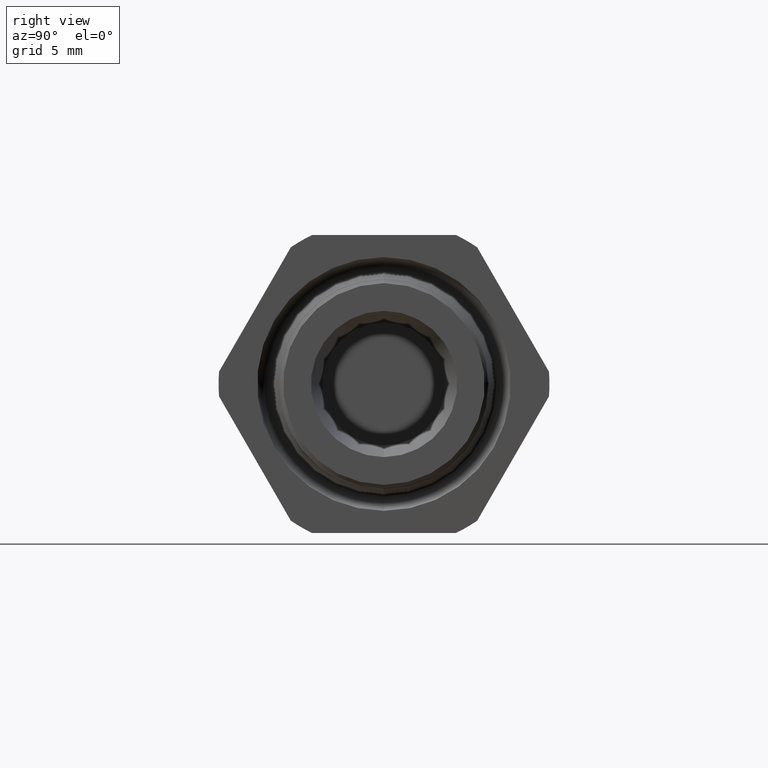
[diagram: clean part render]
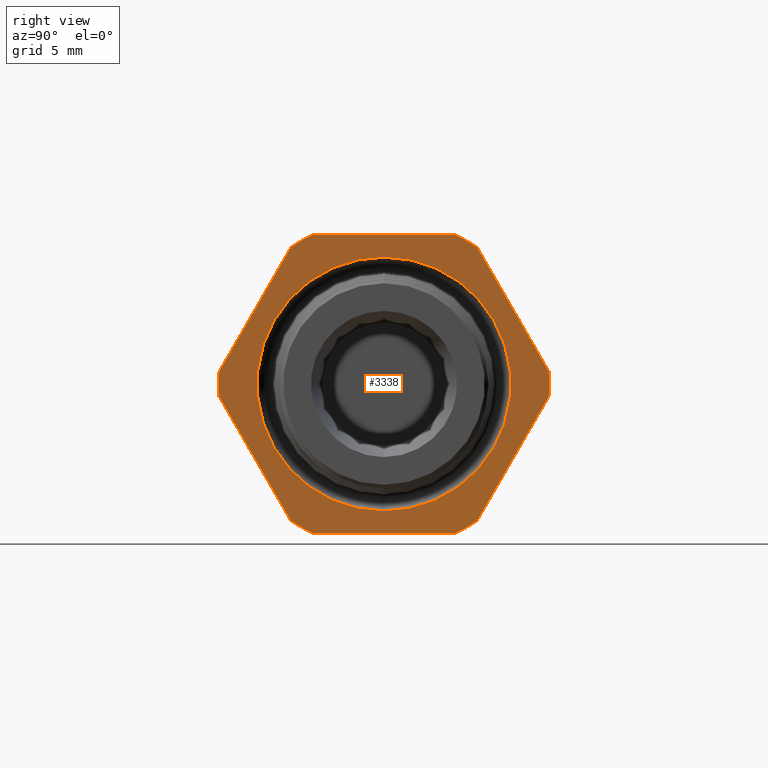
[diagram: same view with one face highlighted and labeled with its STEP entity id]
A machine part, right view. The second image highlights one B-rep face of the part: STEP entity #3338.
In plain terms, the highlighted planar face has unit normal (1, 0, 0).
Its self-contained STEP definition (entity closure, byte-faithful):
#89 = PLANE ( 'NONE',  #150 ) ;
#90 = FACE_OUTER_BOUND ( 'NONE', #3343, .T. ) ;
#91 = FACE_BOUND ( 'NONE', #3339, .T. ) ;
#131 = CARTESIAN_POINT ( 'NONE',  ( -0.3100000000000000000, 0.4150909474475088000, 0.03104138925901233200 ) ) ;
#132 = DIRECTION ( 'NONE',  ( 0.0000000000000000000, 0.0000000000000000000, -1.000000000000000000 ) ) ;
#133 = DIRECTION ( 'NONE',  ( 1.000000000000000000, 0.0000000000000000000, 0.0000000000000000000 ) ) ;
#134 = CARTESIAN_POINT ( 'NONE',  ( -0.3100000000000000000, 0.0000000000000000000, 0.0000000000000000000 ) ) ;
#135 = AXIS2_PLACEMENT_3D ( 'NONE', #134, #133, #132 ) ;
#136 = CIRCLE ( 'NONE', #135, 0.4162500000000000100 ) ;
#137 = CARTESIAN_POINT ( 'NONE',  ( -0.3100000000000000000, 0.4150909474475088000, -0.03104138925901222000 ) ) ;
#138 = CARTESIAN_POINT ( 'NONE',  ( -0.3100000000000000000, 0.2344281053908202900, -0.3439586107409879900 ) ) ;
#139 = DIRECTION ( 'NONE',  ( 0.0000000000000000000, 0.5000000000000000000, 0.8660254037844386000 ) ) ;
#140 = VECTOR ( 'NONE', #139, 39.37007874015748900 ) ;
#141 = CARTESIAN_POINT ( 'NONE',  ( -0.3100000000000000000, 0.5122595264191646100, 0.1372595264191644700 ) ) ;
#142 = LINE ( 'NONE', #141, #140 ) ;
#143 = DIRECTION ( 'NONE',  ( 0.0000000000000000000, 0.0000000000000000000, -1.000000000000000000 ) ) ;
#144 = DIRECTION ( 'NONE',  ( 1.000000000000000000, 0.0000000000000000000, 0.0000000000000000000 ) ) ;
#145 = AXIS2_PLACEMENT_3D ( 'NONE', #151, #144, #143 ) ;
#146 = CIRCLE ( 'NONE', #145, 0.3192456312392313900 ) ;
#147 = DIRECTION ( 'NONE',  ( 0.0000000000000000000, 0.0000000000000000000, -1.000000000000000000 ) ) ;
#148 = DIRECTION ( 'NONE',  ( 1.000000000000000000, 0.0000000000000000000, 0.0000000000000000000 ) ) ;
#149 = CARTESIAN_POINT ( 'NONE',  ( -0.3100000000000000000, 0.7500000000000001100, 0.0000000000000000000 ) ) ;
#150 = AXIS2_PLACEMENT_3D ( 'NONE', #149, #148, #147 ) ;
#151 = CARTESIAN_POINT ( 'NONE',  ( -0.3100000000000000000, 0.0000000000000000000, 0.0000000000000000000 ) ) ;
#213 = CARTESIAN_POINT ( 'NONE',  ( -0.3100000000000000000, -0.2344281053908202100, -0.3439586107409880500 ) ) ;
#214 = DIRECTION ( 'NONE',  ( 0.0000000000000000000, 0.5000000000000003300, -0.8660254037844383700 ) ) ;
#215 = VECTOR ( 'NONE', #214, 39.37007874015748100 ) ;
#216 = CARTESIAN_POINT ( 'NONE',  ( -0.3100000000000000000, -0.1372595264191642800, -0.5122595264191648300 ) ) ;
#217 = LINE ( 'NONE', #216, #215 ) ;
#218 = CARTESIAN_POINT ( 'NONE',  ( -0.3100000000000000000, -0.4150909474475088000, -0.03104138925901237000 ) ) ;
#219 = DIRECTION ( 'NONE',  ( 0.0000000000000000000, 0.0000000000000000000, -1.000000000000000000 ) ) ;
#220 = DIRECTION ( 'NONE',  ( 1.000000000000000000, 0.0000000000000000000, 0.0000000000000000000 ) ) ;
#221 = CARTESIAN_POINT ( 'NONE',  ( -0.3100000000000000000, 0.0000000000000000000, 0.0000000000000000000 ) ) ;
#222 = AXIS2_PLACEMENT_3D ( 'NONE', #221, #220, #219 ) ;
#223 = CIRCLE ( 'NONE', #222, 0.4162500000000000100 ) ;
#241 = CARTESIAN_POINT ( 'NONE',  ( -0.3100000000000000000, 0.0000000000000000000, 0.0000000000000000000 ) ) ;
#242 = CARTESIAN_POINT ( 'NONE',  ( -0.3100000000000000000, -0.1806628420566886700, 0.3749999999999999400 ) ) ;
#243 = DIRECTION ( 'NONE',  ( 0.0000000000000000000, -1.000000000000000000, 0.0000000000000000000 ) ) ;
#244 = VECTOR ( 'NONE', #243, 39.37007874015748100 ) ;
#245 = CARTESIAN_POINT ( 'NONE',  ( -0.3100000000000000000, 0.7500000000000001100, 0.3749999999999999400 ) ) ;
#246 = LINE ( 'NONE', #245, #244 ) ;
#247 = CARTESIAN_POINT ( 'NONE',  ( -0.3100000000000000000, 0.1806628420566887000, 0.3749999999999999400 ) ) ;
#248 = DIRECTION ( 'NONE',  ( 0.0000000000000000000, 0.0000000000000000000, -1.000000000000000000 ) ) ;
#249 = DIRECTION ( 'NONE',  ( 1.000000000000000000, 0.0000000000000000000, 0.0000000000000000000 ) ) ;
#250 = CARTESIAN_POINT ( 'NONE',  ( -0.3100000000000000000, 0.0000000000000000000, 0.0000000000000000000 ) ) ;
#251 = AXIS2_PLACEMENT_3D ( 'NONE', #250, #249, #248 ) ;
#252 = CIRCLE ( 'NONE', #251, 0.4162499999999999500 ) ;
#253 = CARTESIAN_POINT ( 'NONE',  ( -0.3100000000000000000, 0.2344281053908206000, 0.3439586107409877100 ) ) ;
#254 = DIRECTION ( 'NONE',  ( 0.0000000000000000000, -0.4999999999999998900, 0.8660254037844386000 ) ) ;
#255 = VECTOR ( 'NONE', #254, 39.37007874015748100 ) ;
#256 = CARTESIAN_POINT ( 'NONE',  ( -0.3100000000000000000, 0.5122595264191646100, -0.1372595264191644500 ) ) ;
#257 = LINE ( 'NONE', #256, #255 ) ;
#258 = DIRECTION ( 'NONE',  ( 0.0000000000000000000, 0.0000000000000000000, -1.000000000000000000 ) ) ;
#259 = DIRECTION ( 'NONE',  ( 1.000000000000000000, 0.0000000000000000000, 0.0000000000000000000 ) ) ;
#260 = CARTESIAN_POINT ( 'NONE',  ( -0.3100000000000000000, 0.0000000000000000000, 0.0000000000000000000 ) ) ;
#261 = AXIS2_PLACEMENT_3D ( 'NONE', #260, #259, #258 ) ;
#262 = CIRCLE ( 'NONE', #261, 0.4162500000000000100 ) ;
#263 = CARTESIAN_POINT ( 'NONE',  ( -0.3100000000000000000, 0.1806628420566884800, -0.3750000000000001100 ) ) ;
#264 = DIRECTION ( 'NONE',  ( 0.0000000000000000000, 1.000000000000000000, 0.0000000000000000000 ) ) ;
#265 = VECTOR ( 'NONE', #264, 39.37007874015748100 ) ;
#266 = CARTESIAN_POINT ( 'NONE',  ( -0.3100000000000000000, 0.7500000000000001100, -0.3750000000000001100 ) ) ;
#267 = LINE ( 'NONE', #266, #265 ) ;
#268 = CARTESIAN_POINT ( 'NONE',  ( -0.3100000000000000000, -0.1806628420566883900, -0.3750000000000001100 ) ) ;
#269 = DIRECTION ( 'NONE',  ( 0.0000000000000000000, 0.0000000000000000000, -1.000000000000000000 ) ) ;
#270 = DIRECTION ( 'NONE',  ( 1.000000000000000000, 0.0000000000000000000, 0.0000000000000000000 ) ) ;
#271 = CARTESIAN_POINT ( 'NONE',  ( -0.3100000000000000000, 0.0000000000000000000, 0.0000000000000000000 ) ) ;
#272 = AXIS2_PLACEMENT_3D ( 'NONE', #271, #270, #269 ) ;
#273 = CIRCLE ( 'NONE', #272, 0.4162500000000000100 ) ;
#297 = CARTESIAN_POINT ( 'NONE',  ( -0.3100000000000000000, -0.4150909474475088000, 0.03104138925901241800 ) ) ;
#298 = DIRECTION ( 'NONE',  ( 0.0000000000000000000, -0.4999999999999998300, -0.8660254037844386000 ) ) ;
#299 = VECTOR ( 'NONE', #298, 39.37007874015748900 ) ;
#300 = CARTESIAN_POINT ( 'NONE',  ( -0.3100000000000000000, -0.1372595264191648300, 0.5122595264191645000 ) ) ;
#301 = LINE ( 'NONE', #300, #299 ) ;
#302 = CARTESIAN_POINT ( 'NONE',  ( -0.3100000000000000000, -0.2344281053908205100, 0.3439586107409878200 ) ) ;
#303 = DIRECTION ( 'NONE',  ( 0.0000000000000000000, 0.0000000000000000000, -1.000000000000000000 ) ) ;
#304 = DIRECTION ( 'NONE',  ( 1.000000000000000000, 0.0000000000000000000, 0.0000000000000000000 ) ) ;
#305 = AXIS2_PLACEMENT_3D ( 'NONE', #241, #304, #303 ) ;
#306 = CIRCLE ( 'NONE', #305, 0.4162500000000000100 ) ;
#437 = DIRECTION ( 'NONE',  ( 1.000000000000000000, 0.0000000000000000000, 0.0000000000000000000 ) ) ;
#438 = CARTESIAN_POINT ( 'NONE',  ( -0.3100000000000000000, 0.0000000000000000000, 0.0000000000000000000 ) ) ;
#689 = AXIS2_PLACEMENT_3D ( 'NONE', #438, #437, #750 ) ;
#690 = CIRCLE ( 'NONE', #689, 0.3192456312392313900 ) ;
#692 = CARTESIAN_POINT ( 'NONE',  ( -0.3100000000000000000, 3.909631404389010100E-017, 0.3192456312392313900 ) ) ;
#749 = CARTESIAN_POINT ( 'NONE',  ( -0.3100000000000000000, 0.0000000000000000000, -0.3192456312392313900 ) ) ;
#750 = DIRECTION ( 'NONE',  ( 0.0000000000000000000, 0.0000000000000000000, -1.000000000000000000 ) ) ;
#3338 = ADVANCED_FACE ( 'NONE', ( #91, #90 ), #89, .T. ) ;
#3339 = EDGE_LOOP ( 'NONE', ( #3340, #3342 ) ) ;
#3340 = ORIENTED_EDGE ( 'NONE', *, *, #3341, .F. ) ;
#3341 = EDGE_CURVE ( 'NONE', #3658, #3653, #146, .T. ) ;
#3342 = ORIENTED_EDGE ( 'NONE', *, *, #3655, .F. ) ;
#3343 = EDGE_LOOP ( 'NONE', ( #3344, #3348, #3406, #3409, #3412, #3415, #3418, #3392, #3395, #3398, #3401, #3404 ) ) ;
#3344 = ORIENTED_EDGE ( 'NONE', *, *, #3345, .T. ) ;
#3345 = EDGE_CURVE ( 'NONE', #3346, #3347, #142, .T. ) ;
#3346 = VERTEX_POINT ( 'NONE', #138 ) ;
#3347 = VERTEX_POINT ( 'NONE', #137 ) ;
#3348 = ORIENTED_EDGE ( 'NONE', *, *, #3349, .T. ) ;
#3349 = EDGE_CURVE ( 'NONE', #3347, #3350, #136, .T. ) ;
#3350 = VERTEX_POINT ( 'NONE', #131 ) ;
#3392 = ORIENTED_EDGE ( 'NONE', *, *, #3393, .T. ) ;
#3393 = EDGE_CURVE ( 'NONE', #3420, #3394, #223, .T. ) ;
#3394 = VERTEX_POINT ( 'NONE', #218 ) ;
#3395 = ORIENTED_EDGE ( 'NONE', *, *, #3396, .T. ) ;
#3396 = EDGE_CURVE ( 'NONE', #3394, #3397, #217, .T. ) ;
#3397 = VERTEX_POINT ( 'NONE', #213 ) ;
#3398 = ORIENTED_EDGE ( 'NONE', *, *, #3399, .T. ) ;
#3399 = EDGE_CURVE ( 'NONE', #3397, #3400, #273, .T. ) ;
#3400 = VERTEX_POINT ( 'NONE', #268 ) ;
#3401 = ORIENTED_EDGE ( 'NONE', *, *, #3402, .T. ) ;
#3402 = EDGE_CURVE ( 'NONE', #3400, #3403, #267, .T. ) ;
#3403 = VERTEX_POINT ( 'NONE', #263 ) ;
#3404 = ORIENTED_EDGE ( 'NONE', *, *, #3405, .T. ) ;
#3405 = EDGE_CURVE ( 'NONE', #3403, #3346, #262, .T. ) ;
#3406 = ORIENTED_EDGE ( 'NONE', *, *, #3407, .T. ) ;
#3407 = EDGE_CURVE ( 'NONE', #3350, #3408, #257, .T. ) ;
#3408 = VERTEX_POINT ( 'NONE', #253 ) ;
#3409 = ORIENTED_EDGE ( 'NONE', *, *, #3410, .T. ) ;
#3410 = EDGE_CURVE ( 'NONE', #3408, #3411, #252, .T. ) ;
#3411 = VERTEX_POINT ( 'NONE', #247 ) ;
#3412 = ORIENTED_EDGE ( 'NONE', *, *, #3413, .T. ) ;
#3413 = EDGE_CURVE ( 'NONE', #3411, #3414, #246, .T. ) ;
#3414 = VERTEX_POINT ( 'NONE', #242 ) ;
#3415 = ORIENTED_EDGE ( 'NONE', *, *, #3416, .T. ) ;
#3416 = EDGE_CURVE ( 'NONE', #3414, #3417, #306, .T. ) ;
#3417 = VERTEX_POINT ( 'NONE', #302 ) ;
#3418 = ORIENTED_EDGE ( 'NONE', *, *, #3419, .T. ) ;
#3419 = EDGE_CURVE ( 'NONE', #3417, #3420, #301, .T. ) ;
#3420 = VERTEX_POINT ( 'NONE', #297 ) ;
#3653 = VERTEX_POINT ( 'NONE', #692 ) ;
#3655 = EDGE_CURVE ( 'NONE', #3653, #3658, #690, .T. ) ;
#3658 = VERTEX_POINT ( 'NONE', #749 ) ;